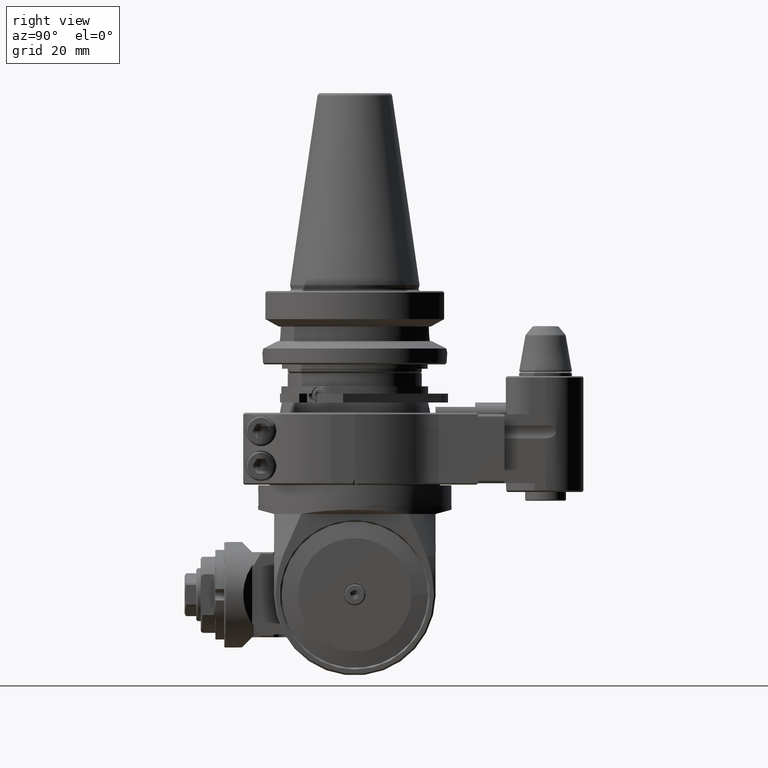
[diagram: clean part render]
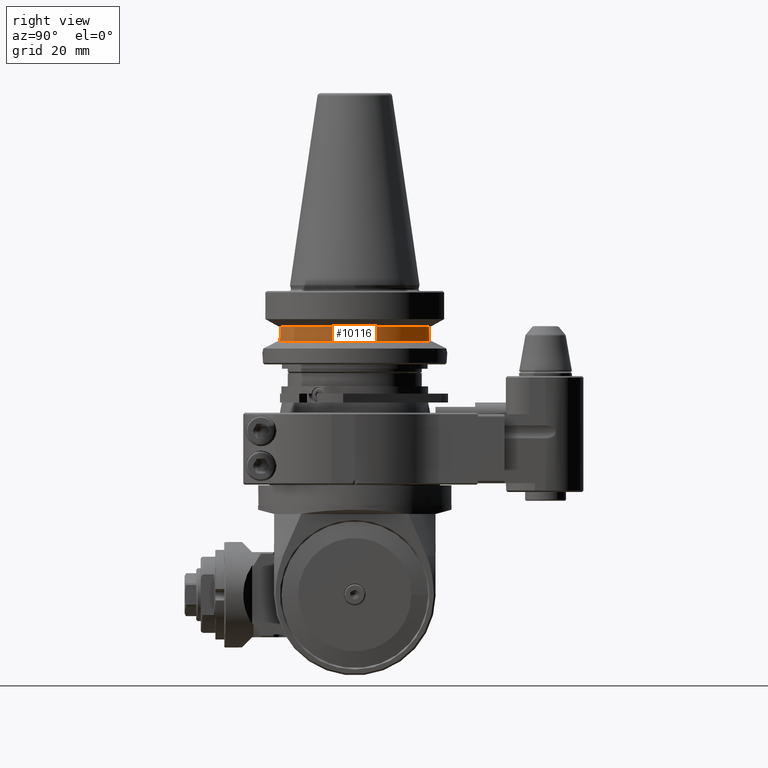
[diagram: same view with one face highlighted and labeled with its STEP entity id]
A machine part, right view. The second image highlights one B-rep face of the part: STEP entity #10116.
In plain terms, the highlighted cylindrical surface (partial cylindrical patch) has radius 26.5 mm, axis along (0, 0, -1).
Its self-contained STEP definition (entity closure, byte-faithful):
#395=B_SPLINE_CURVE_WITH_KNOTS('',3,(#15799,#15800,#15801,#15802,#15803,
#15804),.UNSPECIFIED.,.F.,.F.,(4,2,4),(-0.418571689089077,-0.305374764233348,
0.),.UNSPECIFIED.);
#399=B_SPLINE_CURVE_WITH_KNOTS('',3,(#15844,#15845,#15846,#15847,#15848,
#15849),.UNSPECIFIED.,.F.,.F.,(4,2,4),(0.,0.305374764233348,0.418571689089179),
 .UNSPECIFIED.);
#718=LINE('',#15963,#1554);
#721=LINE('',#15970,#1557);
#1554=VECTOR('',#12540,0.85);
#1557=VECTOR('',#12549,0.85);
#2153=CYLINDRICAL_SURFACE('',#10893,26.5);
#2426=FACE_OUTER_BOUND('',#3046,.T.);
#3046=EDGE_LOOP('',(#7423,#7424,#7425,#7426,#7427,#7428));
#3642=CIRCLE('',#10861,26.5);
#3657=CIRCLE('',#10891,26.5);
#4279=VERTEX_POINT('',#15785);
#4280=VERTEX_POINT('',#15787);
#4282=VERTEX_POINT('',#15798);
#4292=VERTEX_POINT('',#15842);
#4316=VERTEX_POINT('',#15962);
#4317=VERTEX_POINT('',#15966);
#5417=EDGE_CURVE('',#4279,#4280,#3642,.T.);
#5420=EDGE_CURVE('',#4280,#4282,#395,.T.);
#5433=EDGE_CURVE('',#4292,#4279,#399,.T.);
#5468=EDGE_CURVE('',#4316,#4282,#718,.T.);
#5471=EDGE_CURVE('',#4316,#4317,#3657,.T.);
#5472=EDGE_CURVE('',#4292,#4317,#721,.T.);
#7423=ORIENTED_EDGE('',*,*,#5471,.F.);
#7424=ORIENTED_EDGE('',*,*,#5468,.T.);
#7425=ORIENTED_EDGE('',*,*,#5420,.F.);
#7426=ORIENTED_EDGE('',*,*,#5417,.F.);
#7427=ORIENTED_EDGE('',*,*,#5433,.F.);
#7428=ORIENTED_EDGE('',*,*,#5472,.T.);
#10116=ADVANCED_FACE('',(#2426),#2153,.T.);
#10861=AXIS2_PLACEMENT_3D('',#15788,#12460,#12461);
#10891=AXIS2_PLACEMENT_3D('',#15968,#12545,#12546);
#10893=AXIS2_PLACEMENT_3D('',#15972,#12551,#12552);
#12460=DIRECTION('center_axis',(0.,0.,-1.));
#12461=DIRECTION('ref_axis',(0.260295312461792,0.965529052028171,0.));
#12540=DIRECTION('',(0.,0.,-1.));
#12545=DIRECTION('center_axis',(0.,0.,1.));
#12546=DIRECTION('ref_axis',(0.303773583570997,-0.952744252107791,0.));
#12549=DIRECTION('',(0.,0.,1.));
#12551=DIRECTION('center_axis',(0.,0.,-1.));
#12552=DIRECTION('ref_axis',(1.,-1.400901672444E-9,0.));
#15785=CARTESIAN_POINT('',(6.897825780236,25.58651987875,48.9));
#15787=CARTESIAN_POINT('',(6.897825708548,-25.58651989807,48.9));
#15788=CARTESIAN_POINT('Origin',(0.,0.,48.9));
#15798=CARTESIAN_POINT('',(8.04999996463,-25.24772268086,53.05));
#15799=CARTESIAN_POINT('Ctrl Pts',(6.89782570854823,-25.5865198980731,48.9000000000004));
#15800=CARTESIAN_POINT('Ctrl Pts',(7.10100553863545,-25.5317449985941,49.237710617395));
#15801=CARTESIAN_POINT('Ctrl Pts',(7.28091028117866,-25.4806519788356,49.5932708671238));
#15802=CARTESIAN_POINT('Ctrl Pts',(7.84524619844837,-25.3157284285728,50.9510871690593));
#15803=CARTESIAN_POINT('Ctrl Pts',(8.04999996463042,-25.2477226808568,52.0320841192222));
#15804=CARTESIAN_POINT('Ctrl Pts',(8.04999996463042,-25.2477226808568,53.05));
#15842=CARTESIAN_POINT('',(8.05000003537,25.2477226583,53.05));
#15844=CARTESIAN_POINT('Ctrl Pts',(8.05000003536958,25.2477226583023,53.05));
#15845=CARTESIAN_POINT('Ctrl Pts',(8.05000003536958,25.2477226583023,52.0320841192222));
#15846=CARTESIAN_POINT('Ctrl Pts',(7.84524626937807,25.3157284065919,50.9510871690593));
#15847=CARTESIAN_POINT('Ctrl Pts',(7.2809103525703,25.4806519584359,49.5932708671234));
#15848=CARTESIAN_POINT('Ctrl Pts',(7.10100561017005,25.5317449786986,49.2377106173943));
#15849=CARTESIAN_POINT('Ctrl Pts',(6.89782578023608,25.5865198787469,48.8999999999994));
#15962=CARTESIAN_POINT('',(8.04999996463,-25.24772268086,53.9));
#15963=CARTESIAN_POINT('',(8.04999996463,-25.24772268086,53.9));
#15966=CARTESIAN_POINT('',(8.05000003537,25.2477226583,53.9));
#15968=CARTESIAN_POINT('Origin',(0.,0.,53.9));
#15970=CARTESIAN_POINT('',(8.05000003537,25.2477226583,53.05));
#15972=CARTESIAN_POINT('Origin',(0.,0.,51.4));